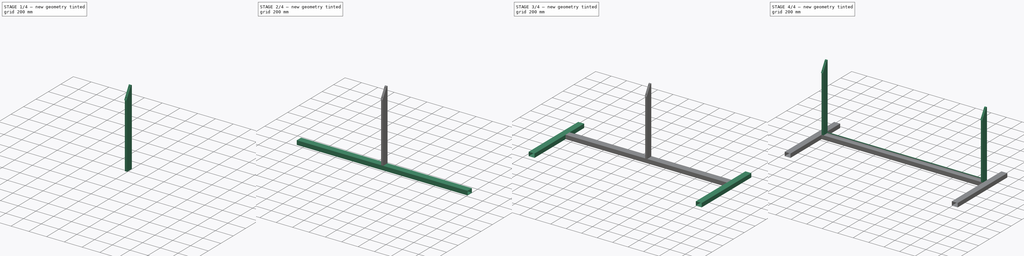
[diagram: build sequence overview — one tinted view per stage of 4, left to right]
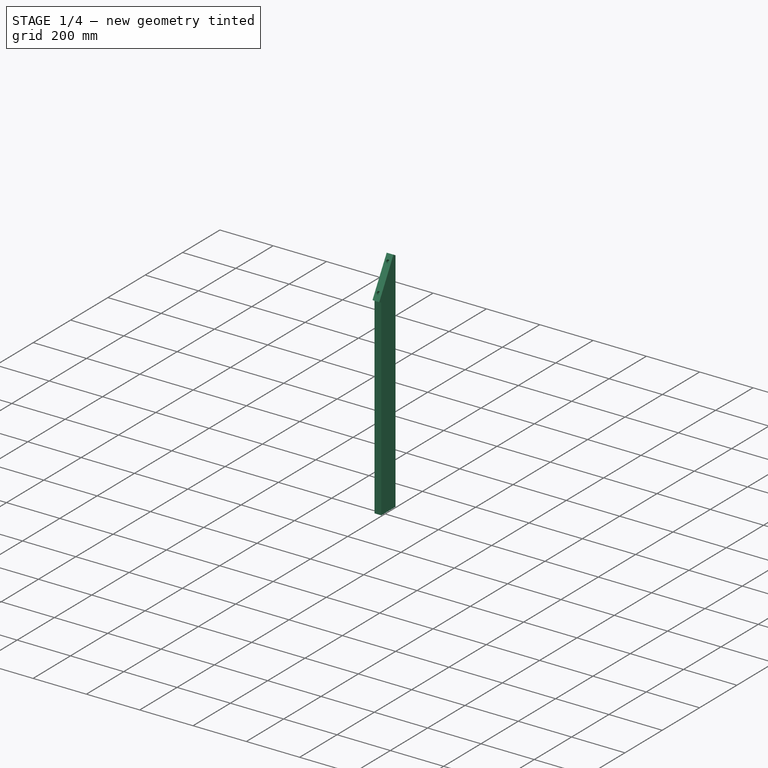
[diagram: stage 1 of 4 — iso view after this stage's code; geometry added in this stage tinted green]
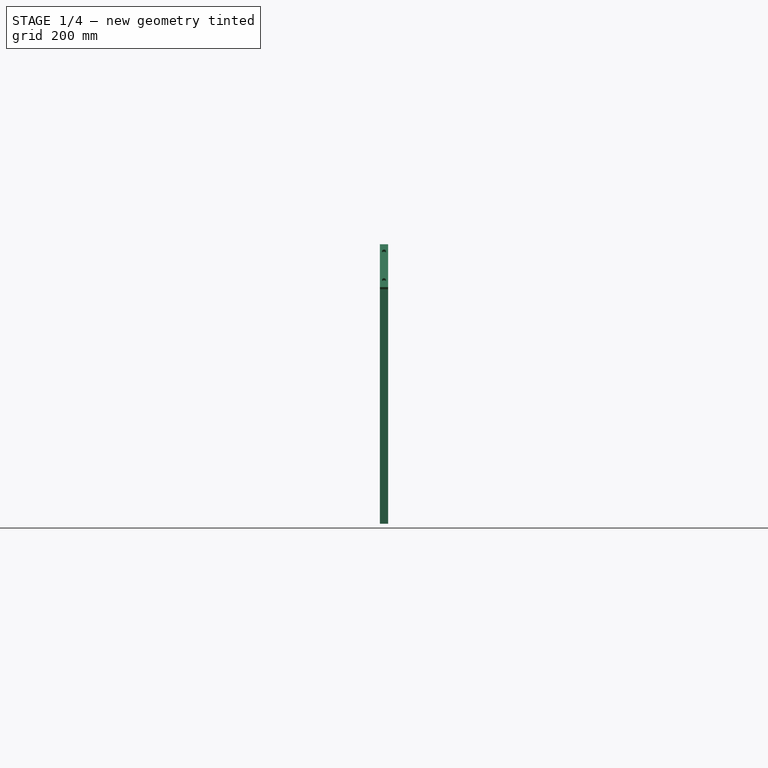
[diagram: stage 1 of 4 — front view after this stage's code; geometry added in this stage tinted green]
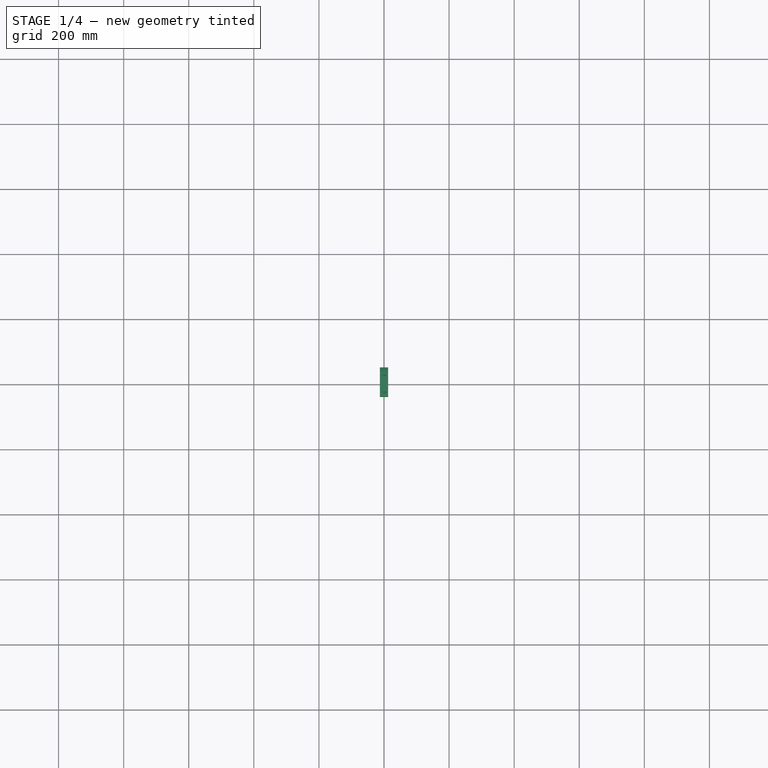
[diagram: stage 1 of 4 — top view after this stage's code; geometry added in this stage tinted green]
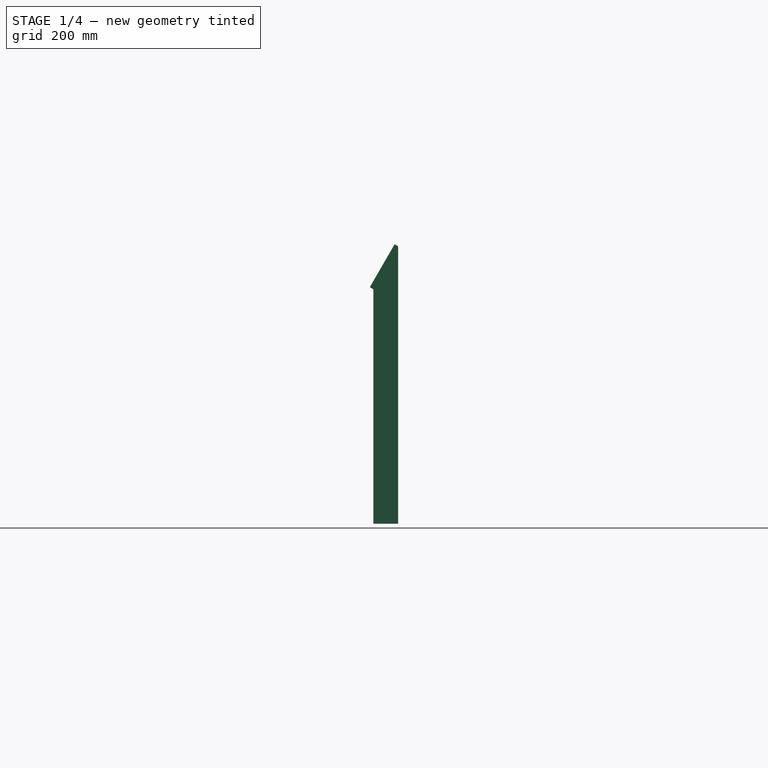
[diagram: stage 1 of 4 — right view after this stage's code; geometry added in this stage tinted green]
FCSTD DOCUMENT  (FreeCAD 0.19R21897 (Git))
Label: Frame2
License: cc-by-sa
LicenseURL: http://creativecommons.org/licenses/by-sa/4.0/
objects: Sketcher::SketchObject×7, PartDesign::Pad×5, PartDesign::CoordinateSystem×4, PartDesign::Pocket×2, PartDesign::Body×2, PartDesign::SubShapeBinder×1, PartDesign::Plane×1, App::Link×1, PartDesign::Mirrored×1, PartDesign::MultiTransform×1, PartDesign::Fillet×1, Part::MultiFuse×1, App::Part×1
note: 34 computed .brp shape members not serialized (recipe doc carries the construction recipe); baked Part::Feature solids carry a one-line shape summary decoded from their .brp
EXTERNAL_REF file=MASTER2.FCStd obj=Body

FEATURE [Sketcher::SketchObject] Sketch002
  MapMode = 5
  Placement = pos=(0,0,0) rot=(0.57735,0.57735,0.57735;2.0944rad)
  Support = -> [YZ_Plane001]
  sketch-geometry (4):
    g0: LineSegment StartX=38.1 StartY=878.103 StartZ=0 EndX=38.1 EndY=25.4 EndZ=0
    g1: LineSegment StartX=38.1 StartY=25.4 StartZ=0 EndX=-38.1 EndY=25.4 EndZ=0
    g2: LineSegment StartX=-38.1 StartY=25.4 StartZ=0 EndX=-38.1 EndY=746.121 EndZ=0
    g3: LineSegment StartX=38.1 StartY=878.103 StartZ=0 EndX=-38.1 EndY=746.121 EndZ=0
  constraints (11):
    c: Coincident(g0,g1)
    c: Coincident(g1,g2)
    c: Vertical(g0)
    c: Vertical(g2)
    c: DistanceX(g1,g1) = 76.2
    c: DistanceY(g1) = 25.4
    c: Coincident(g3,g0)
    c: Coincident(g3,g2)
    c: Angle(g3,g0) = 0.523599
    c: DistanceY(g0) = 878.103
    c: Symmetric(g1,g0,g-2)
FEATURE [PartDesign::Pad] Pad002
  Length = 25.4
  Length2 = 98.425
  Midplane = true
  Placement = pos=(0,0,0) rot=(0.57735,0.57735,0.57735;2.0944rad)
  Profile = -> Sketch002
  Type = 0
FEATURE [Sketcher::SketchObject] Sketch003
  ExternalGeometry = -> [Pad002]
  MapMode = 5
  Placement = pos=(-2.111e-13,-351.655,203.028) rot=(0.447214,0.447214,-0.774597;1.82348rad)
  Support = -> [Pad002]
  sketch-geometry (7):
    g0: Circle CenterX=-754.11 CenterY=-2.522e-13 CenterZ=0 NormalX=0 NormalY=0 NormalZ=1 AngleXU=0 Radius=6.35
    g1: Circle CenterX=-652.51 CenterY=-2.523e-13 CenterZ=0 NormalX=0 NormalY=0 NormalZ=1 AngleXU=0 Radius=6.35
    g2: LineSegment [constr] StartX=-652.51 StartY=-2.523e-13 StartZ=0 EndX=-754.11 EndY=-2.522e-13 EndZ=0
    g3: LineSegment StartX=-779.51 StartY=12.7 StartZ=0 EndX=-627.11 EndY=12.7 EndZ=0
    g4: LineSegment StartX=-627.11 StartY=12.7 StartZ=0 EndX=-627.11 EndY=-12.7 EndZ=0
    g5: LineSegment StartX=-627.11 StartY=-12.7 StartZ=0 EndX=-779.51 EndY=-12.7 EndZ=0
    g6: LineSegment StartX=-779.51 StartY=-12.7 StartZ=0 EndX=-779.51 EndY=12.7 EndZ=0
  constraints (16):
    c: DistanceX(g0,g1) = 101.6
    c: Equal(g0,g1)
    c: Diameter(g0) = 12.7
    c: Symmetric(g-3,g-3,g2)
    c: Coincident(g0,g2)
    c: Coincident(g2,g1)
    c: DistanceX(g-3,g0) = 25.4
    c: Coincident(g3,g4)
    c: Coincident(g4,g5)
    c: Coincident(g5,g6)
    c: Coincident(g6,g3)
    c: Horizontal(g5)
    c: Vertical(g4)
    c: Coincident(g3,g-4)
    c: Coincident(g3,g-4)
    c: Coincident(g5,g-3)
FEATURE [PartDesign::Pad] Pad003
  BaseFeature = -> Pad002
  Length = 12.7
  Length2 = 98.425
  Placement = pos=(0,0,0) rot=(0.57735,0.57735,0.57735;2.0944rad)
  Profile = -> Sketch003
  Type = 0
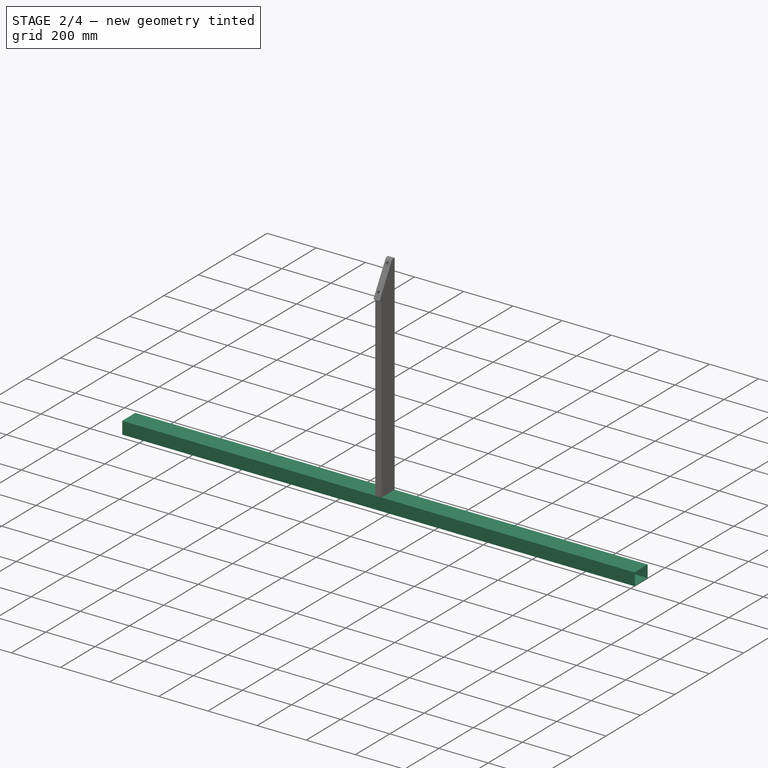
[diagram: stage 2 of 4 — iso view after this stage's code; geometry added in this stage tinted green]
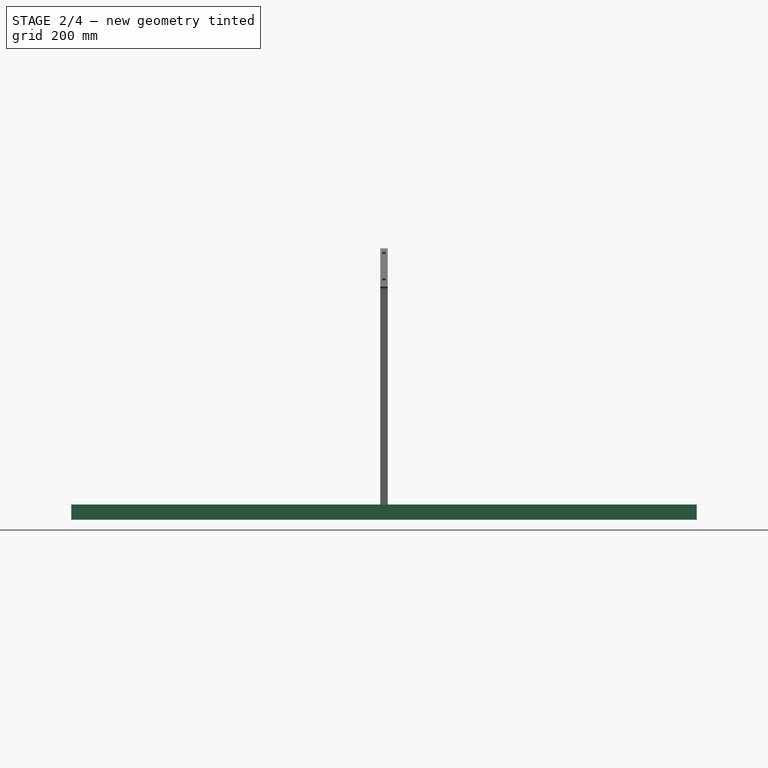
[diagram: stage 2 of 4 — front view after this stage's code; geometry added in this stage tinted green]
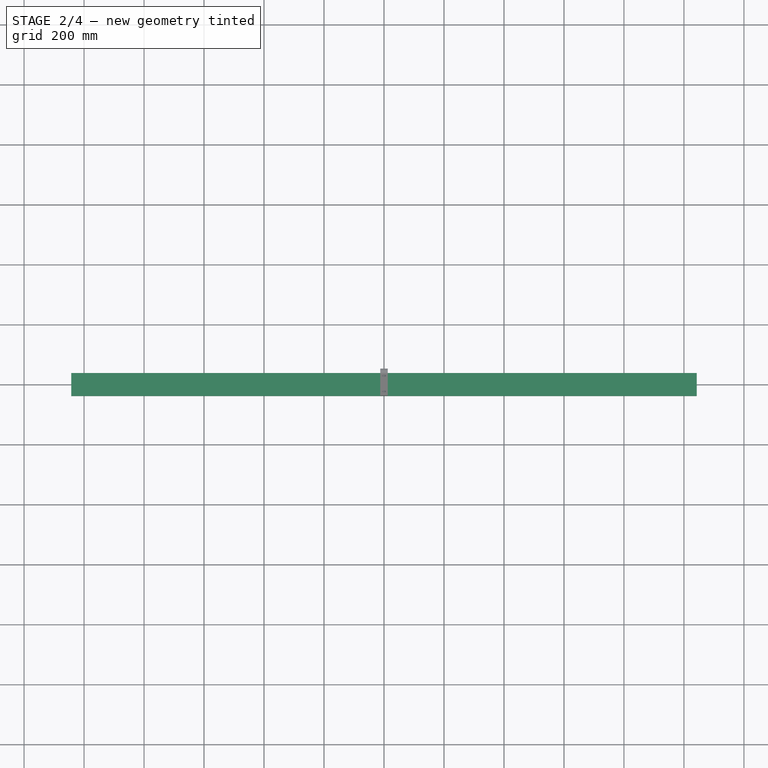
[diagram: stage 2 of 4 — top view after this stage's code; geometry added in this stage tinted green]
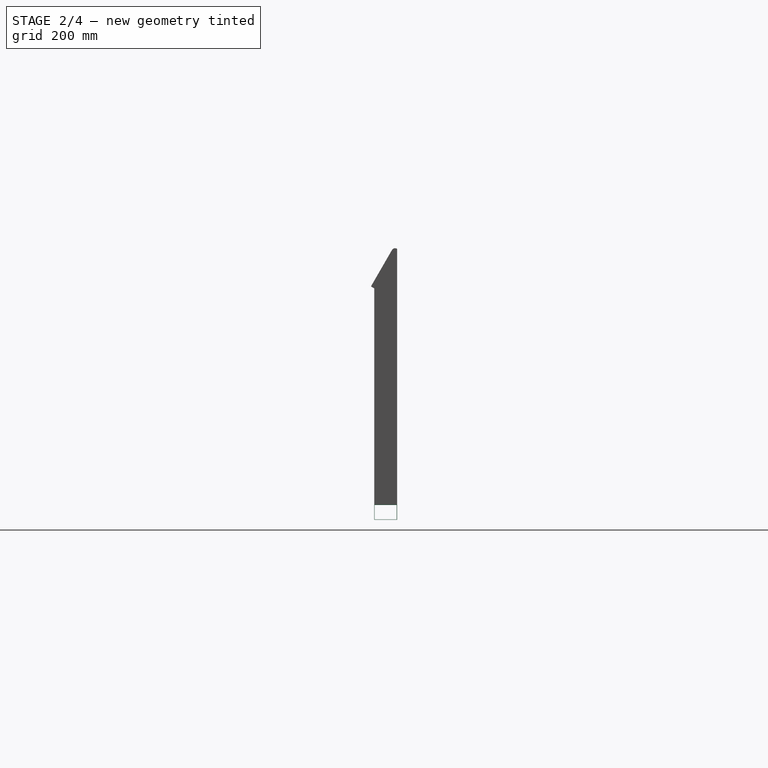
[diagram: stage 2 of 4 — right view after this stage's code; geometry added in this stage tinted green]
FEATURE [Sketcher::SketchObject] Sketch
  MapMode = 5
  Placement = pos=(0,0,0) rot=(0.57735,0.57735,0.57735;2.0944rad)
  Support = -> [YZ_Plane]
  sketch-geometry (8):
    g0: LineSegment StartX=-38.1 StartY=25.4 StartZ=0 EndX=38.1 EndY=25.4 EndZ=0
    g1: LineSegment StartX=38.1 StartY=25.4 StartZ=0 EndX=38.1 EndY=-25.4 EndZ=0
    g2: LineSegment StartX=38.1 StartY=-25.4 StartZ=0 EndX=-38.1 EndY=-25.4 EndZ=0
    g3: LineSegment StartX=-38.1 StartY=-25.4 StartZ=0 EndX=-38.1 EndY=25.4 EndZ=0
    g4: LineSegment StartX=-36.6 StartY=23.9 StartZ=0 EndX=36.6 EndY=23.9 EndZ=0
    g5: LineSegment StartX=36.6 StartY=23.9 StartZ=0 EndX=36.6 EndY=-23.9 EndZ=0
    g6: LineSegment StartX=36.6 StartY=-23.9 StartZ=0 EndX=-36.6 EndY=-23.9 EndZ=0
    g7: LineSegment StartX=-36.6 StartY=-23.9 StartZ=0 EndX=-36.6 EndY=23.9 EndZ=0
  constraints (22):
    c: Coincident(g0,g1)
    c: Coincident(g1,g2)
    c: Coincident(g2,g3)
    c: Coincident(g3,g0)
    c: Horizontal(g0)
    c: Horizontal(g2)
    c: Vertical(g1)
    c: Vertical(g3)
    c: Symmetric(g2,g0,g-1)
    c: Coincident(g4,g5)
    c: Coincident(g5,g6)
    c: Coincident(g6,g7)
    c: Coincident(g7,g4)
    c: Horizontal(g4)
    c: Horizontal(g6)
    c: Vertical(g5)
    c: Vertical(g7)
    c: DistanceX(g2,g6) = 1.5
    c: DistanceY(g2,g6) = 1.5
    c: Symmetric(g4,g6,g-1)
    c: DistanceX(g0,g0) = 76.2
    c: DistanceY(g3,g3) = 50.8
FEATURE [PartDesign::Pad] Pad
  Length = 2085.34
  Length2 = 100
  Midplane = true
  Placement = pos=(0,0,0) rot=(0.57735,0.57735,0.57735;2.0944rad)
  Profile = -> Sketch
  Type = 0
FEATURE [PartDesign::Body] Body  label="FrameBase"
  Group = -> [Binder,Sketch,Pad,DatumPlane,Sketch001,Pad001,Sketch004,Pocket,MultiTransform,Mirrored,Sketch005,Pad004]
  Origin = -> Origin
  Tip = -> Pad004
FEATURE [Sketcher::SketchObject] Sketch006
  ExternalGeometry = -> [Pad003]
  MapMode = 5
  Placement = pos=(1.68e-14,38.1,-8.4e-15) rot=(0.57735,0.57735,0.57735;4.18879rad)
  Support = -> [Pad003]
  sketch-geometry (1):
    g0: Circle CenterX=714.375 CenterY=-0.082469 CenterZ=0 NormalX=0 NormalY=0 NormalZ=1 AngleXU=0 Radius=3.175
  constraints (2):
    c: DistanceX(g-3,g0) = 688.975
    c: Diameter(g0) = 6.35
FEATURE [PartDesign::Pocket] Pocket001
  BaseFeature = -> Pad003
  Length = 6.35
  Length2 = 98.425
  Placement = pos=(0,0,0) rot=(0.57735,0.57735,0.57735;2.0944rad)
  Profile = -> Sketch006
  Type = 0
FEATURE [PartDesign::Fillet] Fillet
  Base = -> Pocket001 [Edge8]
  BaseFeature = -> Pocket001
  Placement = pos=(0,0,0) rot=(0.57735,0.57735,0.57735;2.0944rad)
  Radius = 12.446
  SupportTransform = true
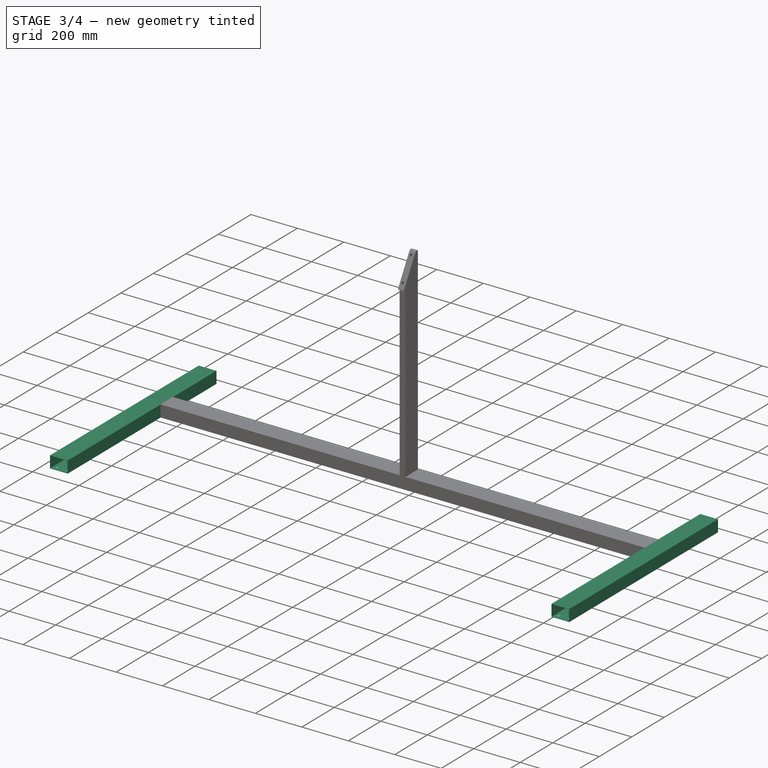
[diagram: stage 3 of 4 — iso view after this stage's code; geometry added in this stage tinted green]
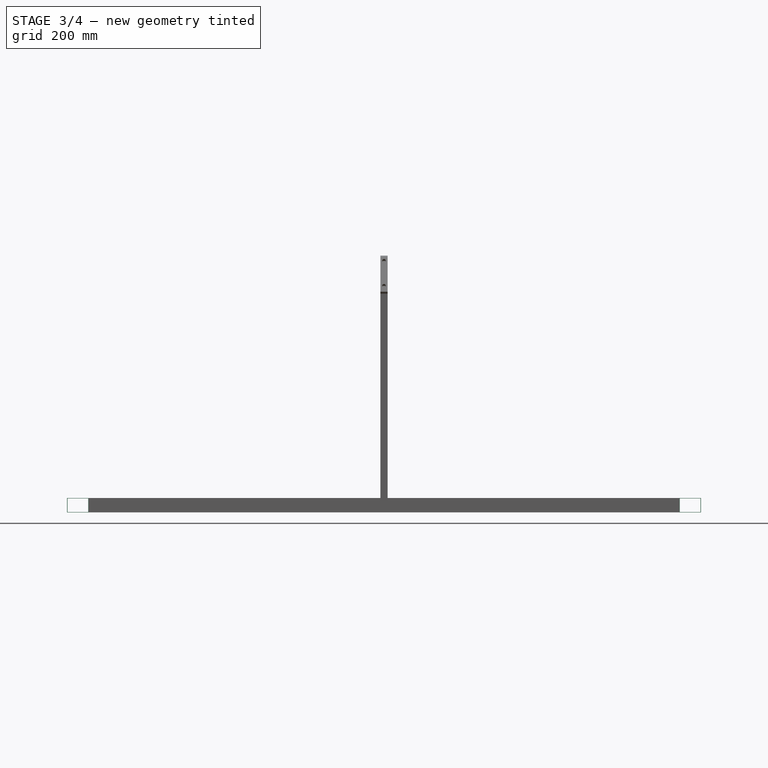
[diagram: stage 3 of 4 — front view after this stage's code; geometry added in this stage tinted green]
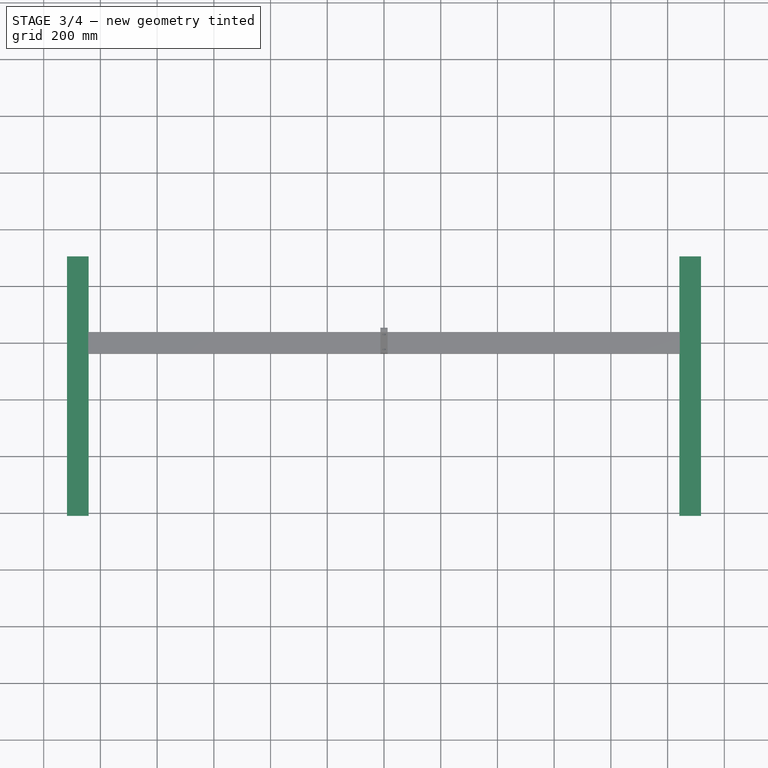
[diagram: stage 3 of 4 — top view after this stage's code; geometry added in this stage tinted green]
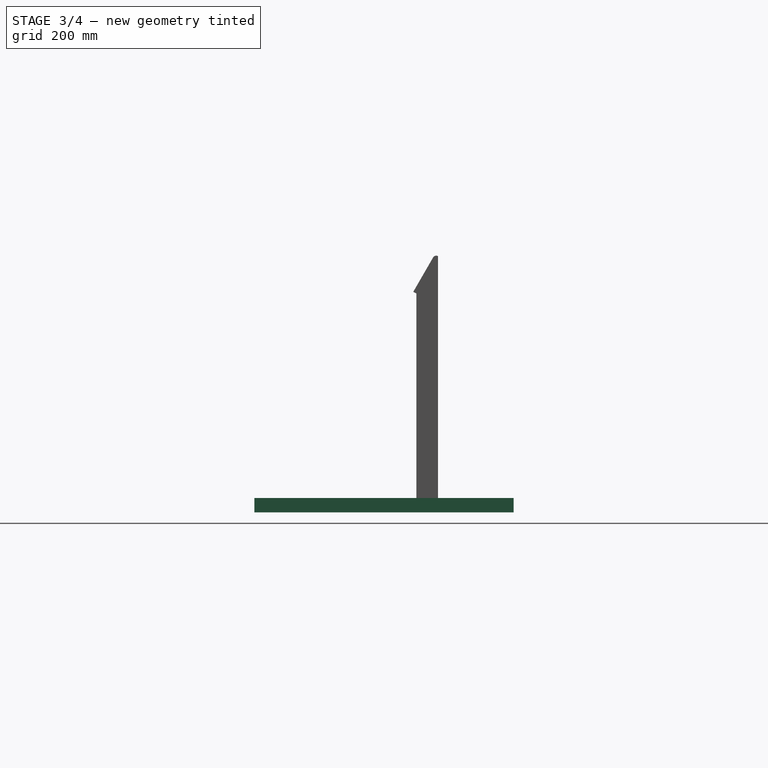
[diagram: stage 3 of 4 — right view after this stage's code; geometry added in this stage tinted green]
FEATURE [PartDesign::SubShapeBinder] Binder
  BindMode = 0
  ClaimChildren = false
  Context = -> Part [Body.Binder.]
  Fuse = false
  MakeFace = true
  PartialLoad = false
  Relative = true
  Support = -> [<external MASTER2.FCStd>#Body[Sketch001.]]
  _Version = 2
FEATURE [PartDesign::Plane] DatumPlane
  AttachmentOffset = pos=(0,0,0) rot=(1,0,0;1.5708rad)
  Length = 1151.5
  MapMode = 49
  Placement = pos=(-1079.5,-609.6,-6.8e-14) rot=(1,0,0;1.5708rad)
  ResizeMode = 0
  Support = -> [Binder]
  Width = 97
FEATURE [Sketcher::SketchObject] Sketch001
  ExternalGeometry = -> [Binder]
  MapMode = 5
  Placement = pos=(-1079.5,-609.6,-6.8e-14) rot=(1,0,0;1.5708rad)
  Support = -> [DatumPlane]
  sketch-geometry (16):
    g0: LineSegment StartX=-36.6 StartY=23.9 StartZ=0 EndX=36.6 EndY=23.9 EndZ=0
    g1: LineSegment StartX=36.6 StartY=23.9 StartZ=0 EndX=36.6 EndY=-23.9 EndZ=0
    g2: LineSegment StartX=36.6 StartY=-23.9 StartZ=0 EndX=-36.6 EndY=-23.9 EndZ=0
    g3: LineSegment StartX=-36.6 StartY=-23.9 StartZ=0 EndX=-36.6 EndY=23.9 EndZ=0
    g4: LineSegment StartX=2122.4 StartY=23.9 StartZ=0 EndX=2195.6 EndY=23.9 EndZ=0
    g5: LineSegment StartX=2195.6 StartY=23.9 StartZ=0 EndX=2195.6 EndY=-23.9 EndZ=0
    g6: LineSegment StartX=2195.6 StartY=-23.9 StartZ=0 EndX=2122.4 EndY=-23.9 EndZ=0
    g7: LineSegment StartX=2122.4 StartY=-23.9 StartZ=0 EndX=2122.4 EndY=23.9 EndZ=0
    g8: LineSegment StartX=-38.1 StartY=25.4 StartZ=0 EndX=38.1 EndY=25.4 EndZ=0
    g9: LineSegment StartX=38.1 StartY=25.4 StartZ=0 EndX=38.1 EndY=-25.4 EndZ=0
    g10: LineSegment StartX=38.1 StartY=-25.4 StartZ=0 EndX=-38.1 EndY=-25.4 EndZ=0
    g11: LineSegment StartX=-38.1 StartY=-25.4 StartZ=0 EndX=-38.1 EndY=25.4 EndZ=0
    g12: LineSegment StartX=2120.9 StartY=25.4 StartZ=0 EndX=2197.1 EndY=25.4 EndZ=0
    g13: LineSegment StartX=2197.1 StartY=25.4 StartZ=0 EndX=2197.1 EndY=-25.4 EndZ=0
    g14: LineSegment StartX=2197.1 StartY=-25.4 StartZ=0 EndX=2120.9 EndY=-25.4 EndZ=0
    g15: LineSegment StartX=2120.9 StartY=-25.4 StartZ=0 EndX=2120.9 EndY=25.4 EndZ=0
  constraints (44):
    c: Coincident(g0,g1)
    c: Coincident(g1,g2)
    c: Coincident(g2,g3)
    c: Coincident(g3,g0)
    c: Horizontal(g0)
    c: Horizontal(g2)
    c: Vertical(g1)
    c: Vertical(g3)
    c: Coincident(g4,g5)
    c: Coincident(g5,g6)
    c: Coincident(g6,g7)
    c: Coincident(g7,g4)
    c: Horizontal(g4)
    c: Horizontal(g6)
    c: Vertical(g5)
    c: Vertical(g7)
    c: Symmetric(g6,g4,g-3)
    c: Symmetric(g0,g1,g-1)
    c: Equal(g4,g0)
    c: Equal(g3,g5)
    c: Coincident(g8,g9)
    c: Coincident(g9,g10)
    c: Coincident(g10,g11)
    c: Coincident(g11,g8)
    c: Horizontal(g8)
    c: Horizontal(g10)
    c: Vertical(g9)
    c: Vertical(g11)
    c: Symmetric(g8,g9,g-1)
    c: DistanceX(g10,g2) = 1.5
    c: DistanceY(g10,g2) = 1.5
    c: DistanceY(g11,g11) = 50.8
    c: DistanceX(g8,g8) = 76.2
    c: Coincident(g12,g13)
    c: Coincident(g13,g14)
    c: Coincident(g14,g15)
    c: Coincident(g15,g12)
    c: Horizontal(g12)
    c: Horizontal(g14)
    c: Vertical(g13)
    c: Vertical(g15)
    c: Symmetric(g12,g14,g-3)
    c: Equal(g12,g8)
    c: Equal(g15,g9)
FEATURE [PartDesign::Pad] Pad001
  BaseFeature = -> Pad
  Length = 914.4
  Length2 = 100
  Placement = pos=(0,0,0) rot=(0.57735,0.57735,0.57735;2.0944rad)
  Profile = -> Sketch001
  Reversed = true
  Type = 0
FEATURE [App::Link] Link  label="FrameUpright001"
  LinkPlacement = pos=(1028.7,0,0) rot=(0,0,1;0rad)
  LinkedObject = -> Body001
  Placement = pos=(1028.7,0,0) rot=(0,0,1;0rad)
FEATURE [Sketcher::SketchObject] Sketch004
  ExternalGeometry = -> [Pad001]
  MapMode = 5
  Placement = pos=(2.8e-15,-5.6e-15,-25.4) rot=(0.707107,0.707107,0;3.14159rad)
  Support = -> [Pad001]
  sketch-geometry (16):
    g0: LineSegment [constr] StartX=-588.95 StartY=-1057.28 StartZ=0 EndX=-512.75 EndY=-1057.28 EndZ=0
    g1: LineSegment [constr] StartX=-512.75 StartY=-1057.28 StartZ=0 EndX=-512.75 EndY=-1101.73 EndZ=0
    g2: LineSegment [constr] StartX=-512.75 StartY=-1101.73 StartZ=0 EndX=-588.95 EndY=-1101.73 EndZ=0
    g3: LineSegment [constr] StartX=-588.95 StartY=-1101.73 StartZ=0 EndX=-588.95 EndY=-1057.28 EndZ=0
    g4: Circle CenterX=-588.95 CenterY=-1057.28 CenterZ=0 NormalX=0 NormalY=0 NormalZ=1 AngleXU=0 Radius=3.96875
    g5: Circle CenterX=-512.75 CenterY=-1057.28 CenterZ=0 NormalX=0 NormalY=0 NormalZ=1 AngleXU=0 Radius=3.96875
    g6: Circle CenterX=-588.95 CenterY=-1101.73 CenterZ=0 NormalX=0 NormalY=0 NormalZ=1 AngleXU=0 Radius=3.96875
    g7: Circle CenterX=-512.75 CenterY=-1101.73 CenterZ=0 NormalX=0 NormalY=0 NormalZ=1 AngleXU=0 Radius=3.96875
    g8: LineSegment [constr] StartX=207.95 StartY=-1057.27 StartZ=0 EndX=284.15 EndY=-1057.27 EndZ=0
    g9: LineSegment [constr] StartX=284.15 StartY=-1057.27 StartZ=0 EndX=284.15 EndY=-1101.72 EndZ=0
    g10: LineSegment [constr] StartX=284.15 StartY=-1101.72 StartZ=0 EndX=207.95 EndY=-1101.72 EndZ=0
    g11: LineSegment [constr] StartX=207.95 StartY=-1101.72 StartZ=0 EndX=207.95 EndY=-1057.27 EndZ=0
    g12: Circle CenterX=207.95 CenterY=-1057.27 CenterZ=0 NormalX=0 NormalY=0 NormalZ=1 AngleXU=0 Radius=3.96875
    g13: Circle CenterX=207.95 CenterY=-1101.72 CenterZ=0 NormalX=0 NormalY=0 NormalZ=1 AngleXU=0 Radius=3.96875
    g14: Circle CenterX=284.15 CenterY=-1057.27 CenterZ=0 NormalX=0 NormalY=0 NormalZ=1 AngleXU=0 Radius=3.96875
    g15: Circle CenterX=284.15 CenterY=-1101.72 CenterZ=0 NormalX=0 NormalY=0 NormalZ=1 AngleXU=0 Radius=3.96875
  constraints (40):
    c: Coincident(g0,g1)
    c: Coincident(g1,g2)
    c: Coincident(g2,g3)
    c: Coincident(g3,g0)
    c: Horizontal(g0)
    c: Horizontal(g2)
    c: Vertical(g1)
    c: Vertical(g3)
    c: Coincident(g4,g0)
    c: Coincident(g5,g0)
    c: Coincident(g6,g2)
    c: Coincident(g7,g1)
    c: Equal(g4,g5)
    c: Equal(g5,g7)
    c: Equal(g7,g6)
    c: DistanceY(g3,g3) = 44.45
    c: DistanceX(g0,g0) = 76.2
    c: Diameter(g4) = 7.9375
    c: DistanceX(g4,g-3) = -20.6502
    c: DistanceY(g4,g-3) = -60.325
    c: Coincident(g8,g9)
    c: Coincident(g9,g10)
    c: Coincident(g10,g11)
    c: Coincident(g11,g8)
    c: Horizontal(g8)
    c: Horizontal(g10)
    c: Vertical(g9)
    c: Vertical(g11)
    c: Coincident(g12,g8)
    c: Coincident(g13,g10)
    c: Coincident(g14,g8)
    c: Coincident(g15,g9)
    c: Equal(g12,g14)
    c: Equal(g14,g13)
    c: Equal(g13,g15)
    c: Equal(g15,g4)
    c: Equal(g0,g8)
    c: Equal(g1,g11)
    c: PointOnObject(g12,g0)
    c: DistanceX(g15,g-4) = 20.6502
FEATURE [PartDesign::Pocket] Pocket
  BaseFeature = -> Pad001
  Length = 6.35
  Length2 = 98.425
  Placement = pos=(0,0,0) rot=(0.57735,0.57735,0.57735;2.0944rad)
  Profile = -> Sketch004
  Type = 0
FEATURE [PartDesign::Mirrored] Mirrored
  MirrorPlane = -> Sketch004 [H_Axis]
  Placement = pos=(0,0,0) rot=(0.57735,0.57735,0.57735;2.0944rad)
FEATURE [PartDesign::MultiTransform] MultiTransform
  BaseFeature = -> Pocket
  Originals = -> [Pocket]
  Placement = pos=(0,0,0) rot=(0.57735,0.57735,0.57735;2.0944rad)
  Transformations = -> [Mirrored]
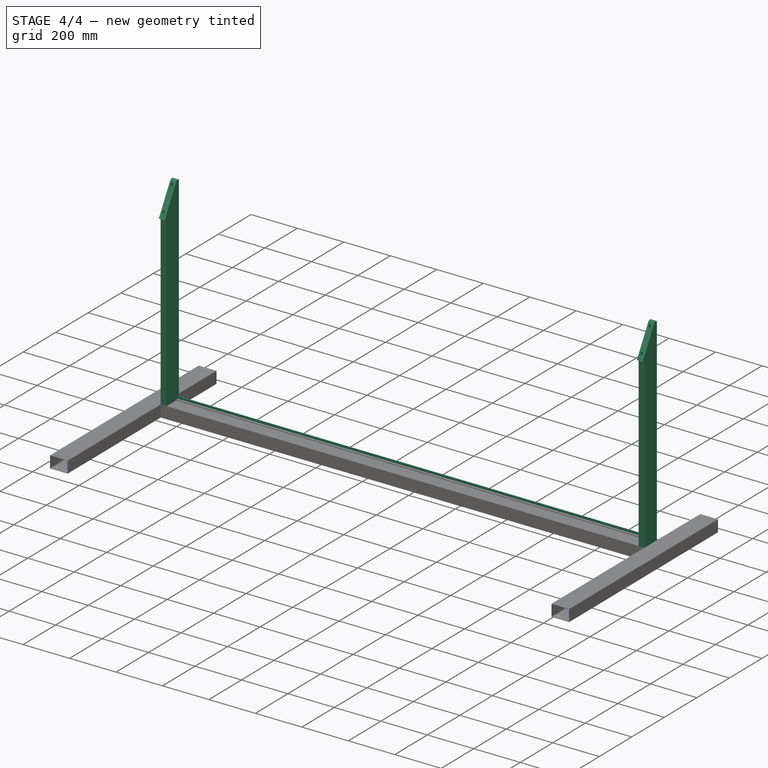
[diagram: stage 4 of 4 — iso view after this stage's code; geometry added in this stage tinted green]
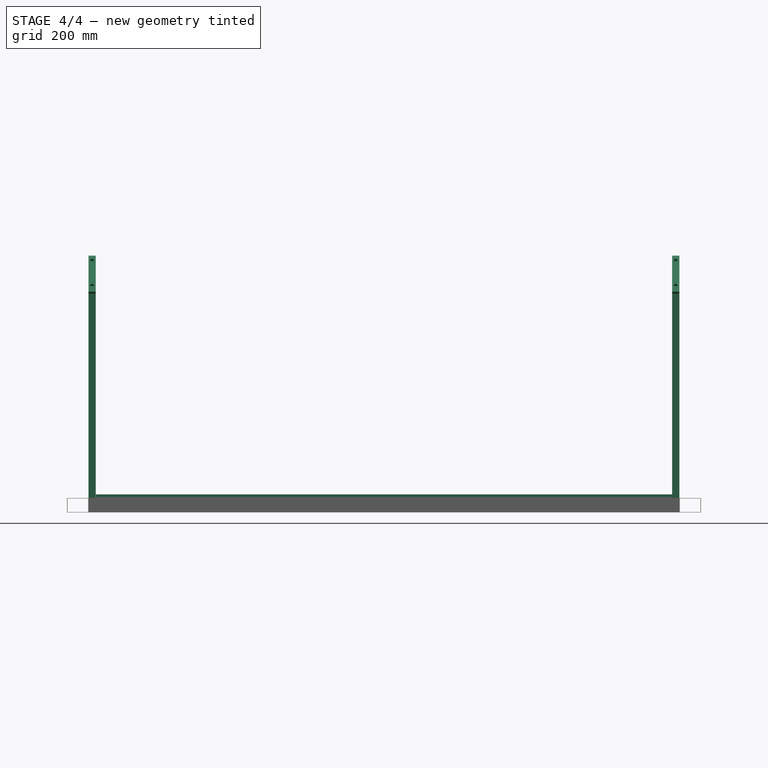
[diagram: stage 4 of 4 — front view after this stage's code; geometry added in this stage tinted green]
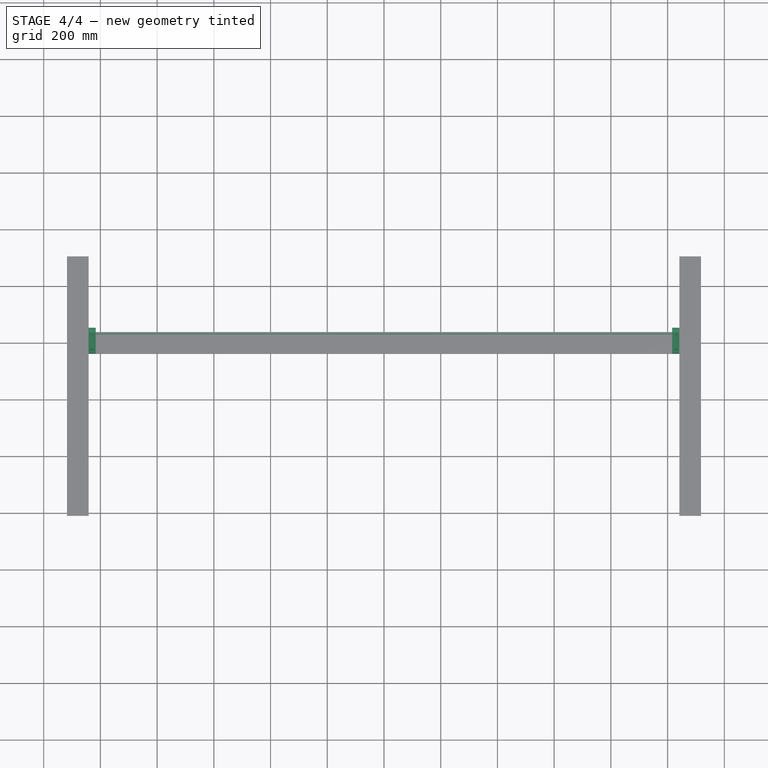
[diagram: stage 4 of 4 — top view after this stage's code; geometry added in this stage tinted green]
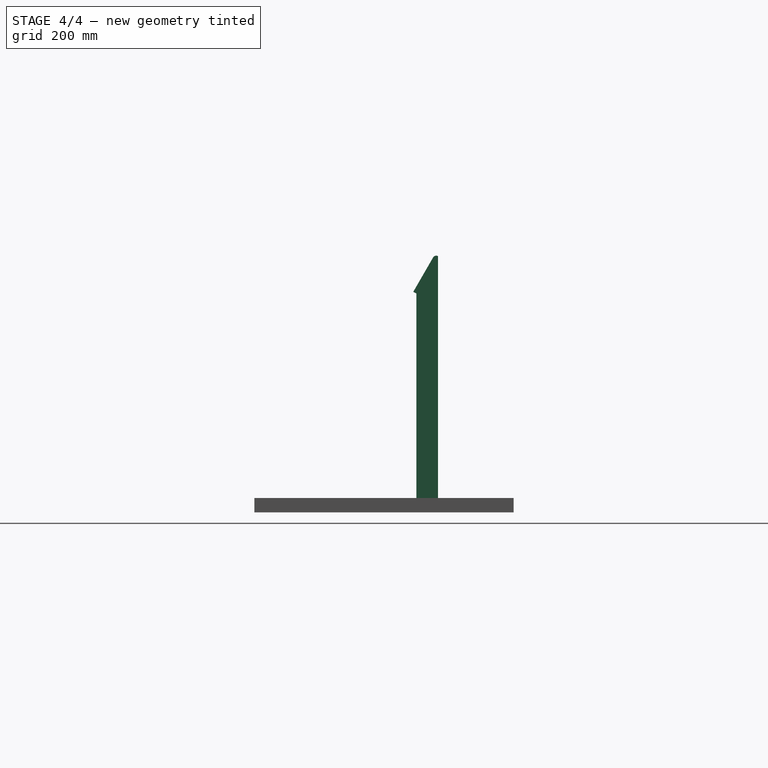
[diagram: stage 4 of 4 — right view after this stage's code; geometry added in this stage tinted green]
FEATURE [PartDesign::CoordinateSystem] CH1
  AttacherType = Attacher::AttachEngine3D
  MapMode = 11
  Placement = pos=(-1101.73,-588.95,-25.4) rot=(1,0,0;3.14159rad)
  Support = -> [MultiTransform]
FEATURE [Sketcher::SketchObject] Sketch005
  MapMode = 5
  Placement = pos=(0,0,0) rot=(0.57735,0.57735,0.57735;2.0944rad)
  Support = -> [YZ_Plane]
  sketch-geometry (7):
    g0: LineSegment StartX=30.1625 StartY=38.1 StartZ=0 EndX=33.3375 EndY=38.1 EndZ=0
    g1: LineSegment StartX=33.3375 StartY=38.1 StartZ=0 EndX=33.3375 EndY=25.4 EndZ=0
    g2: LineSegment StartX=33.3375 StartY=25.4 StartZ=0 EndX=20.6375 EndY=25.4 EndZ=0
    g3: LineSegment StartX=20.6375 StartY=25.4 StartZ=0 EndX=20.6375 EndY=28.575 EndZ=0
    g4: LineSegment StartX=20.6375 StartY=28.575 StartZ=0 EndX=30.1625 EndY=28.575 EndZ=0
    g5: LineSegment StartX=30.1625 StartY=28.575 StartZ=0 EndX=30.1625 EndY=38.1 EndZ=0
    g6: GeomPoint X=31.75 Y=38.1 Z=0
  constraints (19):
    c: Horizontal(g0)
    c: Coincident(g0,g1)
    c: Vertical(g1)
    c: Coincident(g1,g2)
    c: Horizontal(g2)
    c: Coincident(g2,g3)
    c: Coincident(g3,g4)
    c: Horizontal(g4)
    c: Coincident(g4,g5)
    c: Coincident(g5,g0)
    c: Vertical(g5)
    c: Equal(g0,g3)
    c: Equal(g5,g4)
    c: Vertical(g3)
    c: DistanceX(g0,g0) = 3.175
    c: DistanceY(g2) = 25.4
    c: Symmetric(g0,g0,g6)
    c: DistanceX(g-1,g6) = 31.75
    c: DistanceY(g1,g1) = 12.7
FEATURE [PartDesign::Pad] Pad004
  BaseFeature = -> MultiTransform
  Length = 2032
  Length2 = 98.425
  Midplane = true
  Placement = pos=(0,0,0) rot=(0.57735,0.57735,0.57735;2.0944rad)
  Profile = -> Sketch005
  Type = 0
FEATURE [PartDesign::Body] Body001  label="FrameUpright"
  Group = -> [Sketch002,Pad002,Sketch003,Pad003,Sketch006,Pocket001,Fillet]
  Origin = -> Origin001
  Placement = pos=(-1029.1,0,0) rot=(0,0,1;0rad)
  Tip = -> Fillet
FEATURE [Part::MultiFuse] Fusion
  Shapes = -> [Body,Body001,Link]
FEATURE [PartDesign::CoordinateSystem] Bearing1
  AttacherType = Attacher::AttachEngine3D
  MapMode = 11
  Placement = pos=(-1029.1,14.4015,862.456) rot=(1,0,0;1.0472rad)
  Support = -> [Fusion]
FEATURE [PartDesign::CoordinateSystem] Bearing2
  AttacherType = Attacher::AttachEngine3D
  MapMode = 11
  Placement = pos=(1028.7,14.4015,862.456) rot=(1,0,0;1.0472rad)
  Support = -> [Fusion]
FEATURE [PartDesign::CoordinateSystem] BraceFrameBolt
  AttacherType = Attacher::AttachEngine3D
  MapMode = 11
  Placement = pos=(-1029.18,38.1,714.375) rot=(-1,0,0;1.5708rad)
  Support = -> [Fusion]
FEATURE [App::Part] Part  label="Frame"
  Group = -> [Body001,Body,Link,Fusion,Bearing1,Bearing2,CH1,BraceFrameBolt]
  Origin = -> Origin002

RESOLVED EXTERNAL PARTS (link-assembly join: the EXTERNAL_REF files above that resolve inside this repo's crawl, each included once):
---- part MASTER2.FCStd = doc fcstd_a39db4692ca0 ----
FCSTD DOCUMENT  (FreeCAD 0.19R21897 (Git))
Label: MASTER2
License: cc-by-sa
LicenseURL: http://creativecommons.org/licenses/by-sa/4.0/
objects: Sketcher::SketchObject×2, PartDesign::Line×1, PartDesign::Plane×1, PartDesign::Body×1
note: 5 computed .brp shape members not serialized (recipe doc carries the construction recipe); baked Part::Feature solids carry a one-line shape summary decoded from their .brp

FEATURE [Sketcher::SketchObject] Sketch  label="MASTER"
  MapMode = 5
  Placement = pos=(0,0,0) rot=(0.57735,0.57735,0.57735;2.0944rad)
  Support = -> [YZ_Plane]
  sketch-geometry (3):
    g0: Circle CenterX=0 CenterY=1066.8 CenterZ=0 NormalX=0 NormalY=0 NormalZ=1 AngleXU=0 Radius=10
    g1: LineSegment StartX=-609.6 StartY=0 StartZ=0 EndX=304.8 EndY=0 EndZ=0
    g2: LineSegment StartX=0 StartY=1066.8 StartZ=0 EndX=0 EndY=0 EndZ=0
  constraints (9):
    c: PointOnObject(g1,g-1)
    c: PointOnObject(g1,g-1)
    c: Coincident(g2,g0)
    c: Vertical(g2)
    c: DistanceY(g0) = 1066.8
    c: DistanceX(g1,g1) = 914.4
    c: Coincident(g2,g-1)
    c: DistanceX(g2,g1) = 304.8
    c: Radius(g0) = 10
FEATURE [PartDesign::Line] DatumLine  label="RollerAxis"
  AttacherType = Attacher::AttachEngineLine
  Length = 20
  MapMode = 19
  Placement = pos=(-2.369e-13,2.363e-13,1066.8) rot=(0.57735,0.57735,0.57735;2.0944rad)
  ResizeMode = 0
  Support = -> [Sketch]
FEATURE [PartDesign::Plane] DatumPlane  label="HorizontalPlane"
  Length = 355.483
  MapMode = 49
  Placement = pos=(6.77e-14,304.8,-6.77e-14) rot=(0,0,-1;1.5708rad)
  ResizeMode = 0
  Support = -> [Sketch]
  Width = 75.6827
FEATURE [Sketcher::SketchObject] Sketch001  label="HorizontalMaster"
  ExternalGeometry = -> [Sketch]
  MapMode = 5
  Placement = pos=(6.77e-14,304.8,-6.77e-14) rot=(0,0,-1;1.5708rad)
  Support = -> [DatumPlane]
  sketch-geometry (4):
    g0: LineSegment StartX=304.8 StartY=1079.5 StartZ=0 EndX=304.8 EndY=-1079.5 EndZ=0
    g1: LineSegment StartX=0 StartY=1079.5 StartZ=0 EndX=914.4 EndY=1079.5 EndZ=0
    g2: LineSegment StartX=0 StartY=-1079.5 StartZ=0 EndX=914.4 EndY=-1079.5 EndZ=0
    g3: LineSegment [constr] StartX=0 StartY=1079.5 StartZ=0 EndX=0 EndY=-1079.5 EndZ=0
  constraints (13):
    c: Symmetric(g0,g0,g-1)
    c: PointOnObject(g-4,g0)
    c: DistanceY(g0,g0) = 2159
    c: Horizontal(g1)
    c: Horizontal(g2)
    c: PointOnObject(g0,g2)
    c: Equal(g1,g2)
    c: Coincident(g3,g1)
    c: Coincident(g3,g2)
    c: Vertical(g3)
    c: PointOnObject(g-1,g3)
    c: Equal(g2,g-3)
    c: PointOnObject(g0,g1)
FEATURE [PartDesign::Body] Body  label="Master"
  Group = -> [Sketch,DatumLine,DatumPlane,Sketch001]
  Origin = -> Origin
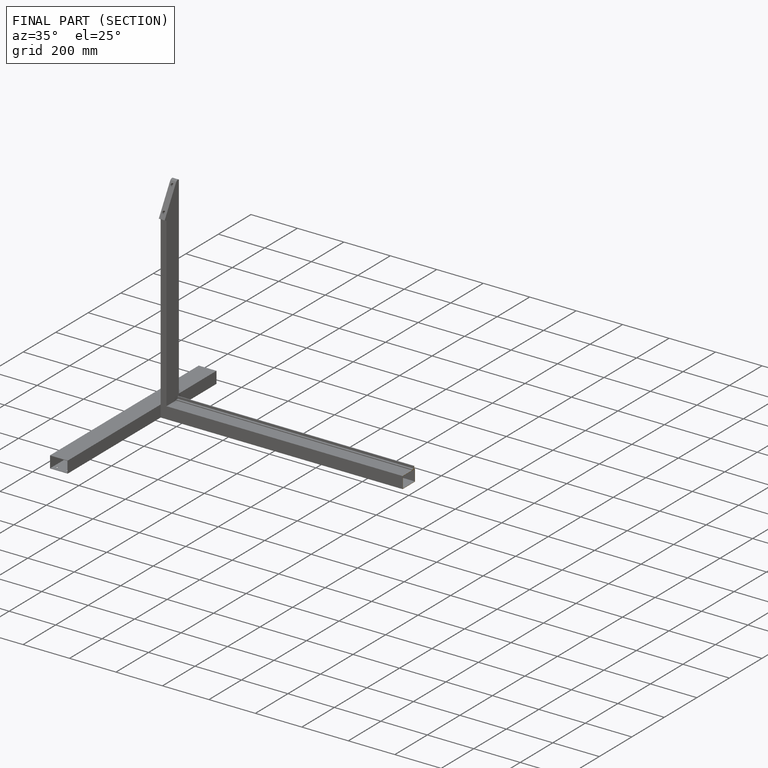
[diagram: finished part — half-section view (interior)]
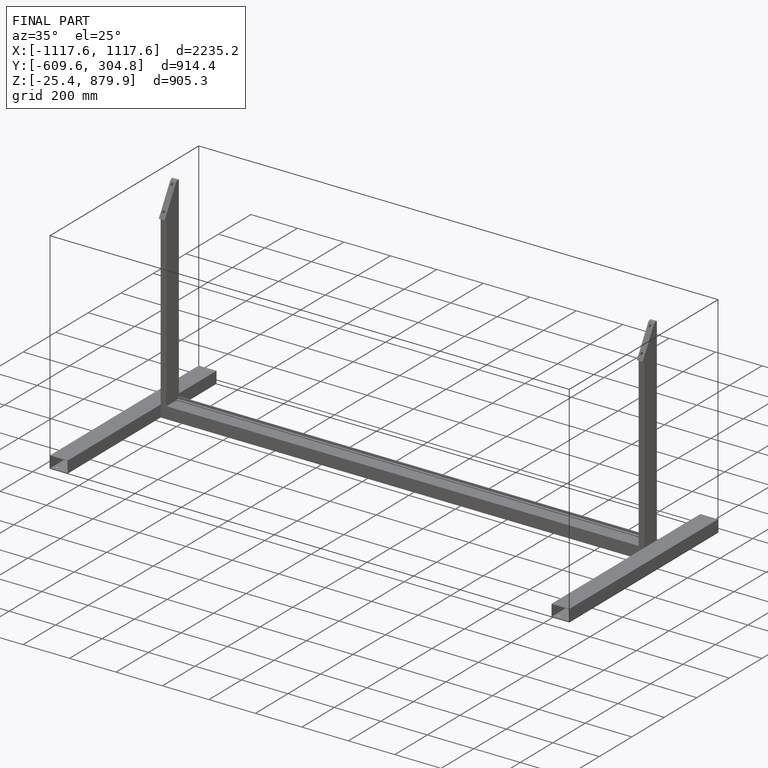
[diagram: finished part — iso view with bounding-box wireframe]
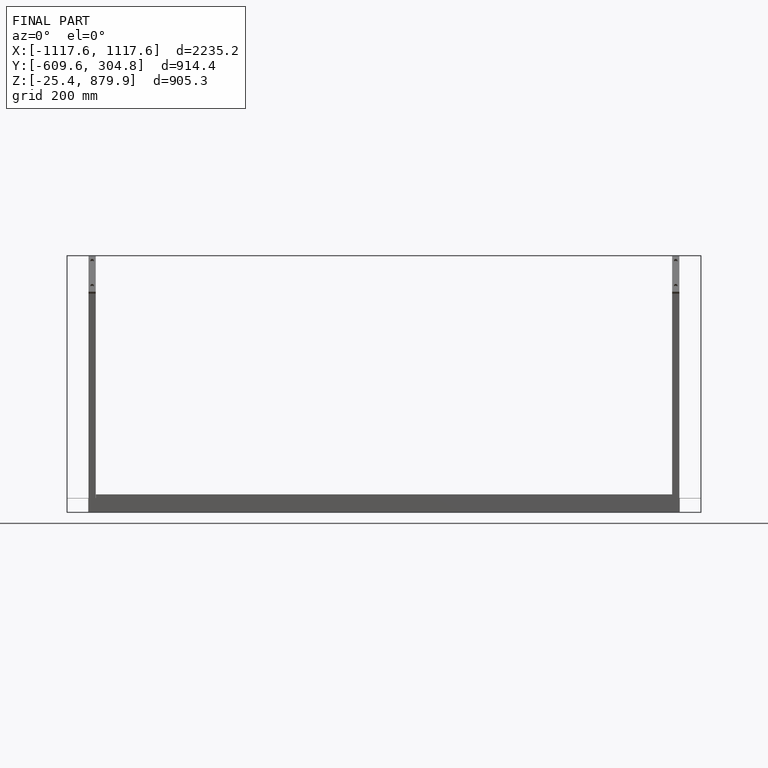
[diagram: finished part — front view with bounding-box wireframe]
